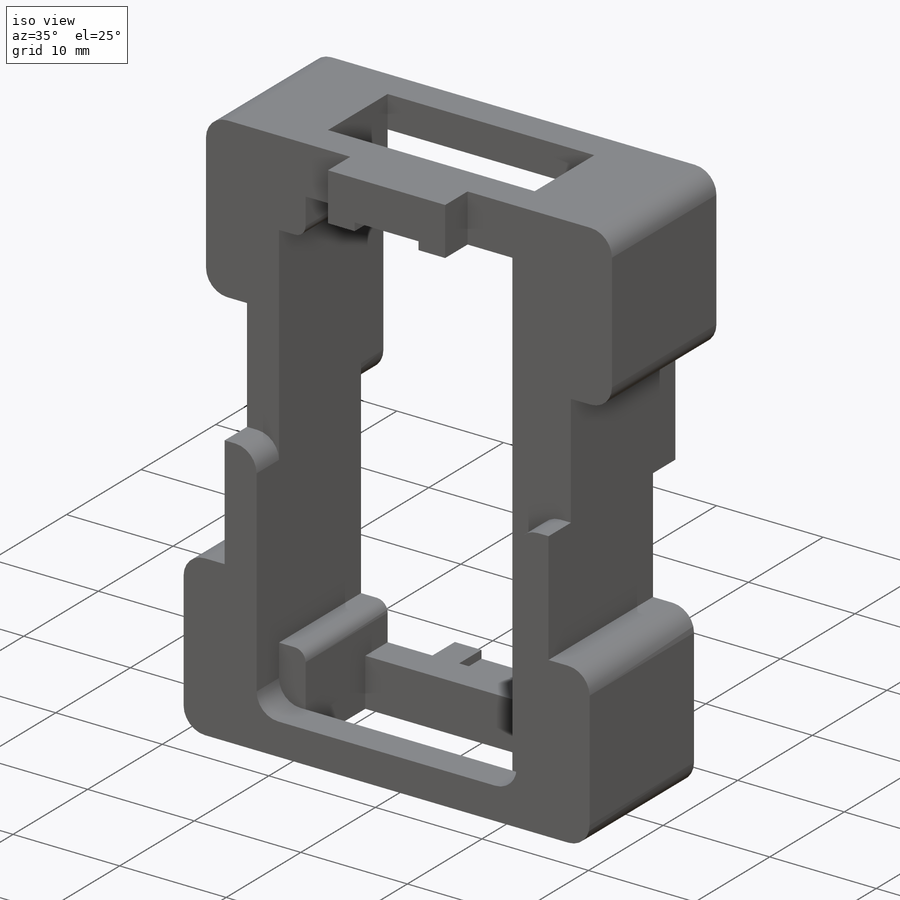
[diagram: iso view]
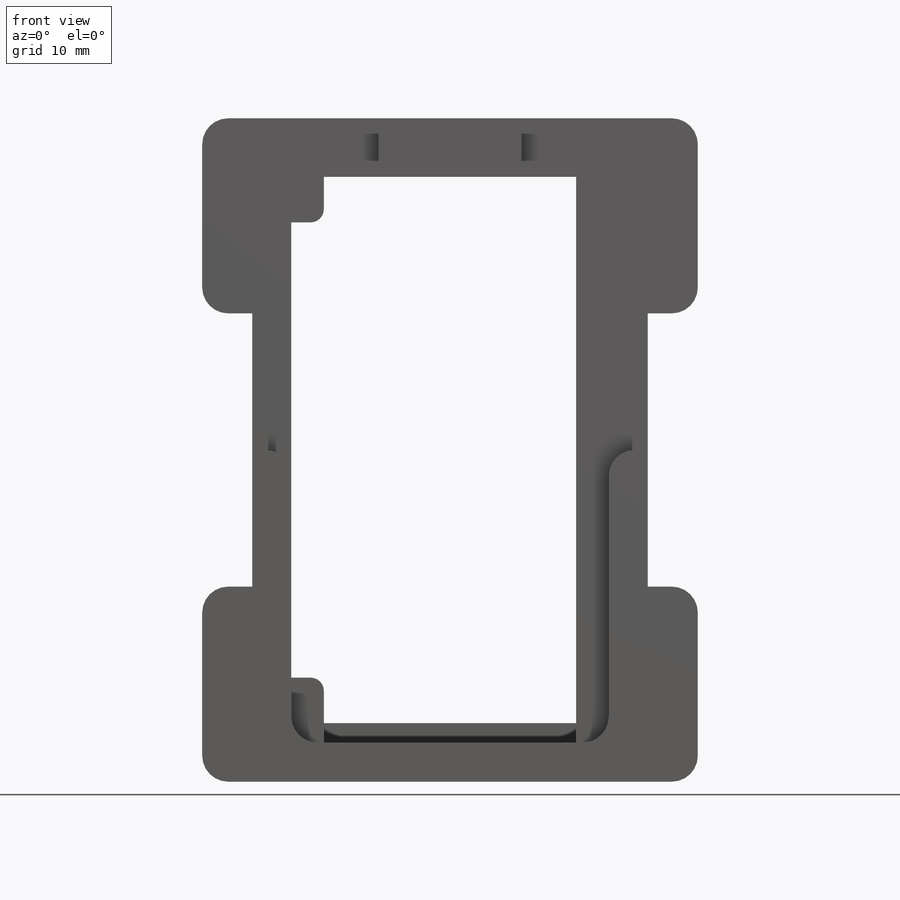
[diagram: front view]
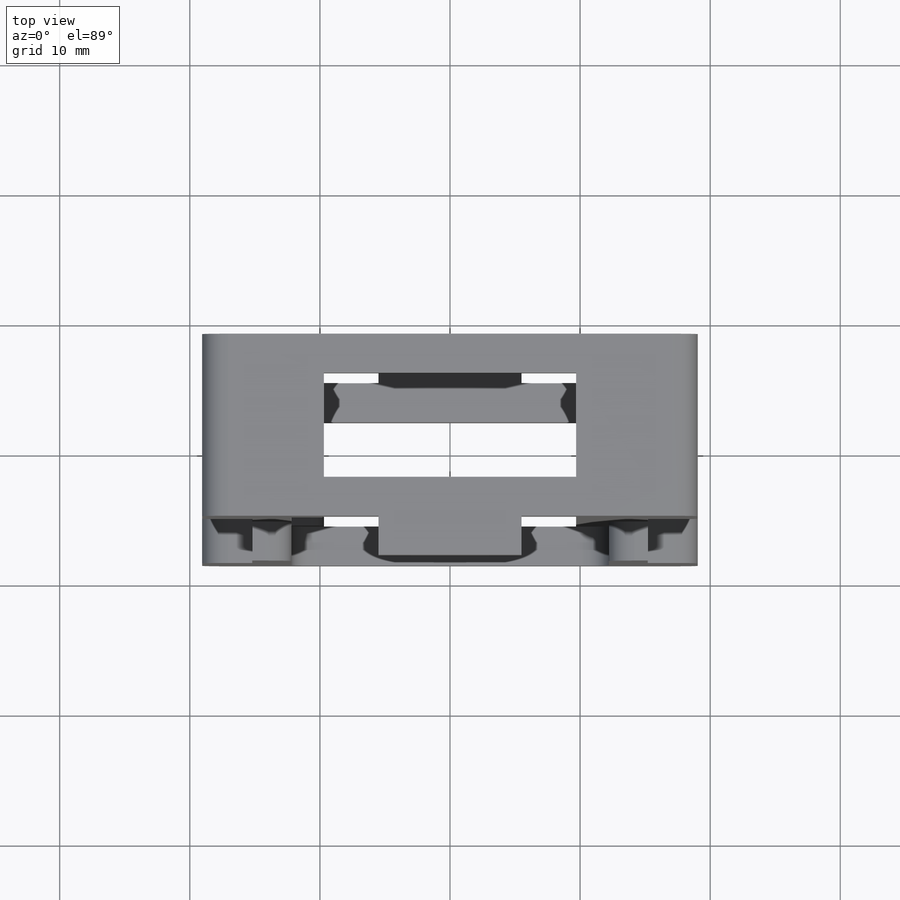
[diagram: top view]
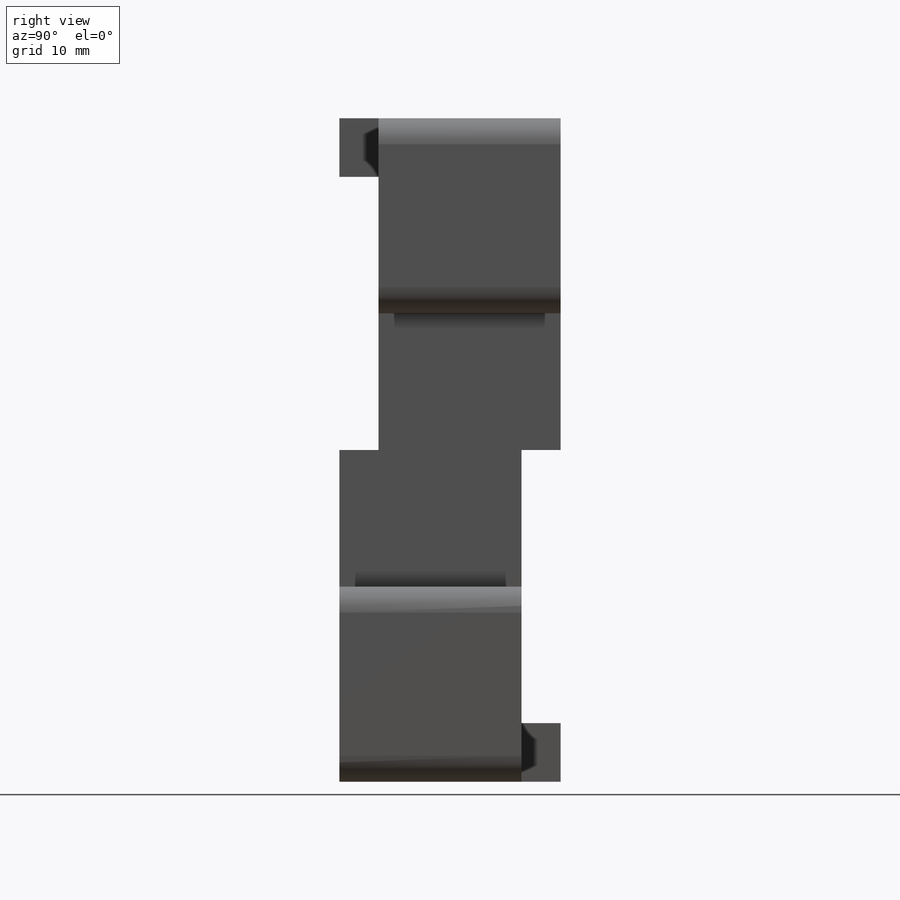
[diagram: right view]
SOLIDWORKS PART (.sldprt)
format: sldprt  version: not decoded by parser v0  size: 455,168 bytes
history: native  units: mm
features: sketch x9, extrude x5, cut_extrude x3, fillet x2, material x1 + 1 further entry (+17 scaffold rows collapsed; 3 parser-record rows omitted)
feature tree (41):
  scaffold x17  (default folders/planes/origin — collapsed)
  material  "ABS"
  sketch  "values-params_print"  dims[width destroy=0.7mm width keep=3.0mm width tab=4.0mm base diameter=100.0mm print fit=0.15mm print free=0.35mm anchor diameter=3.0mm pin diameter=3.175mm pulley diameter=9.5mm pulley thickness=2.4mm base pin diameter=6.35mm]
  "params_print"
  parser-record x3  (decoder bookkeeping rows leaked as tree rows — omitted from the tree; the rows remain in map.json)
  sketch  "Body"  dims[c1.D3=~15.056789mm c1.D4=17.0mm c1.D1=~71.651755mm c1.D2=~45.687744mm c1.DynWidth=24.4mm c1.DynHeight=45.0mm c2.D3=10.0mm c2.D5=~38.452292mm c2.D6=~20.632937mm c3.D5=2.5mm c3.D6=~49.14155mm c3.D7=~28.665904mm c4.D6=3.0mm]
  extrude  "Main Body"  Depth=11mm depth=11mm
  sketch  "Sketch2"  dims[c1.D4=17.0mm c1.D5=17.0mm c1.D1=~45.915982mm c1.D2=~24.038034mm c2.D1=~47.947012mm c2.D2=~26.610775mm c3.D1=22.5mm c3.D2=24.4mm c3.D3=~1.569684mm c3.D4=~13.119291mm c4.D3=11.0mm c4.D4=~23.930316mm c4.D5=10.0mm c5.D3=11.0mm c5.D6=6.0mm c5.D7=21.75mm]
  extrude  "Clamp Walls 1"  Depth=3mm
  sketch  "Sketch3"  dims[D1=24.4mm D2=22.5mm D3=11.0mm D4=6.0mm D5=21.75mm]
  extrude  "Clamp Walls 2"  Depth=3mm
  sketch  "Sketch7"  dims[c1.D1=~6.710437mm c1.D2=11.0mm c2.D1=~6.554098mm c2.D2=11.0mm c3.D1=15.0mm c3.D2=~10.975629mm c3.D3=11.0mm]
  extrude  "Standoff 1"  Depth=3.85mm
  sketch  "Sketch8"  dims[c1.D1=~11.125553mm c1.D2=11.0mm c2.D1=~10.51493mm c2.D2=11.0mm]
  extrude  "Standoff 2"  Depth=3.85mm
  fillet  "Contouring"  Radius=2mm
  sketch  "Sketch11"  dims[c1.D1=~2.208714mm c1.D2=~8.729489mm c2.D1=~5.292701mm c2.D2=~21.224019mm c3.D1=14.0mm c3.D2=~13.478523mm c4.D1=~7.400376mm c5.D1=~4.302723mm c5.D2=~14.056372mm c6.D1=3.0mm]
  cut_extrude  "Ventilation 1"  [1 undecoded]
  sketch  "Sketch12"  dims[c1.D1=~3.783698mm c1.D2=~19.092064mm c2.D1=4.0mm]
  cut_extrude  "Ventilation 2"  [1 undecoded]
  sketch  "Sketch13"  dims[D1=5.0mm]
  cut_extrude  "MX Cap Clearance"  [1 undecoded]
  fillet  "Contouring - Inner"  Radius=1mm
decode coverage: 16 of 19 modeling features carry decoded parameters; 1 rows unclassified (native names shown)
note: ~ marks probable driven/reference dimensions
note: 3 parameter values undecoded
summary: no parameter record found for 3 features
note: suppression state not decoded; provenance and decode notes live in map.json
